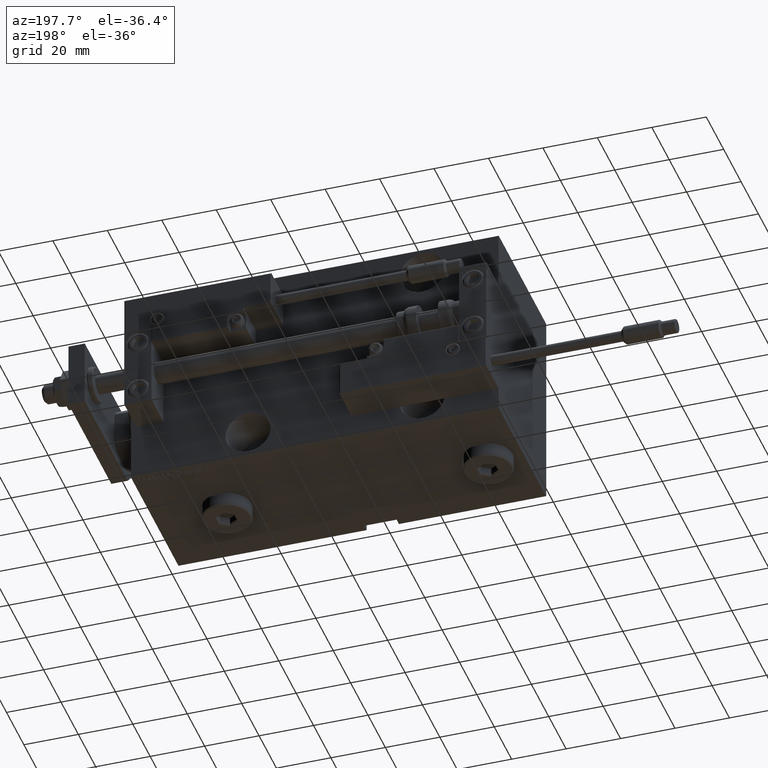
[diagram: clean part render]
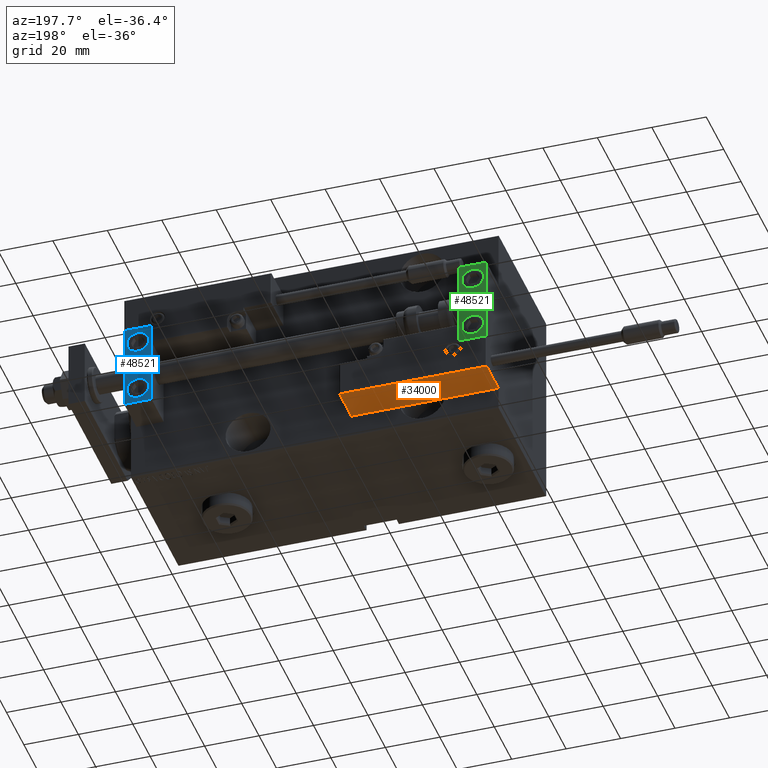
[diagram: same view with three faces highlighted in distinct colors, each labeled with its STEP entity id]
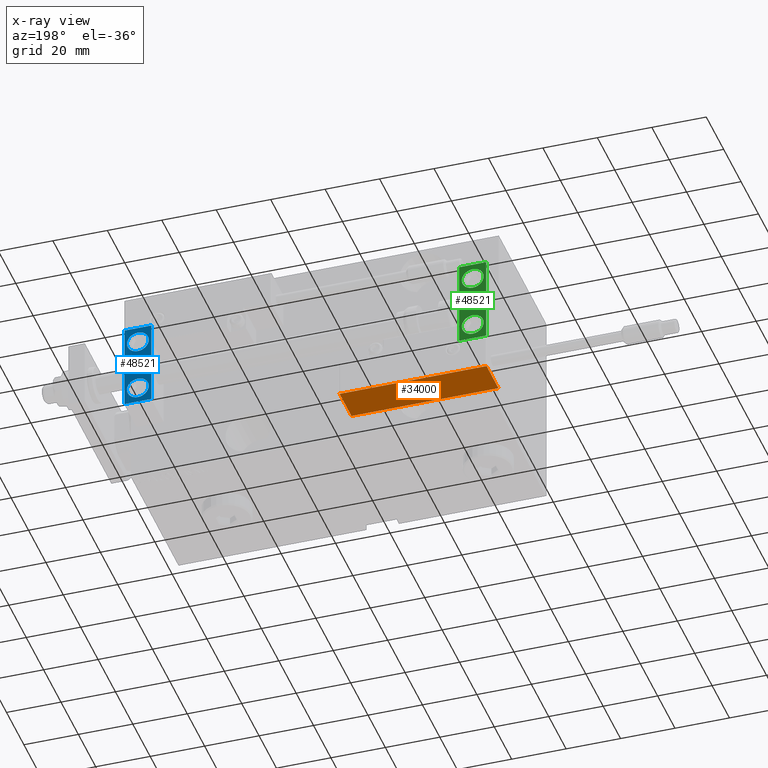
[diagram: x-ray of the same camera — body ghosted, the three highlighted faces saturated]
A machine part, auxiliary view with three faces highlighted in distinct colors.
The next image is the same camera in x-ray (body ghosted, the three faces saturated) — at least one of them is partly hidden behind the body in this view.
Their STEP definitions:

[orange] entity #34000 — the highlighted planar face has unit normal (-0, -0, 1).
#117 = LINE ( 'NONE', #32188, #41498 ) ;
#1582 = EDGE_CURVE ( 'NONE', #38336, #22028, #33457, .T. ) ;
#1802 = DIRECTION ( 'NONE',  ( -0.000000000000000000, -0.000000000000000000, -1.000000000000000000 ) ) ;
#3501 = CARTESIAN_POINT ( 'NONE',  ( 27.00000000000006395, 20.00000000000001776, 0.000000000000000000 ) ) ;
#4026 = DIRECTION ( 'NONE',  ( 1.000000000000000000, -6.424901762877063495E-17, -0.000000000000000000 ) ) ;
#4506 = CARTESIAN_POINT ( 'NONE',  ( 27.00000000000006395, 20.00000000000001776, 14.00000000000000000 ) ) ;
#5030 = DIRECTION ( 'NONE',  ( 1.000000000000000000, -6.424901762877063495E-17, 0.000000000000000000 ) ) ;
#5322 = EDGE_CURVE ( 'NONE', #13831, #38336, #117, .T. ) ;
#6064 = DIRECTION ( 'NONE',  ( -0.000000000000000000, -0.000000000000000000, -1.000000000000000000 ) ) ;
#9102 = ORIENTED_EDGE ( 'NONE', *, *, #1582, .T. ) ;
#10927 = AXIS2_PLACEMENT_3D ( 'NONE', #4506, #36069, #5030 ) ;
#11108 = ORIENTED_EDGE ( 'NONE', *, *, #28473, .F. ) ;
#11586 = DIRECTION ( 'NONE',  ( -1.000000000000000000, 6.424901762877062263E-17, 0.000000000000000000 ) ) ;
#13831 = VERTEX_POINT ( 'NONE', #33783 ) ;
#18570 = VECTOR ( 'NONE', #11586, 1000.000000000000000 ) ;
#18910 = EDGE_CURVE ( 'NONE', #22028, #23529, #39231, .T. ) ;
#22028 = VERTEX_POINT ( 'NONE', #32745 ) ;
#23529 = VERTEX_POINT ( 'NONE', #41276 ) ;
#24361 = PLANE ( 'NONE',  #10927 ) ;
#24663 = ORIENTED_EDGE ( 'NONE', *, *, #18910, .T. ) ;
#28473 = EDGE_CURVE ( 'NONE', #13831, #23529, #37524, .T. ) ;
#29690 = VECTOR ( 'NONE', #6064, 1000.000000000000000 ) ;
#31409 = VECTOR ( 'NONE', #1802, 1000.000000000000000 ) ;
#32188 = CARTESIAN_POINT ( 'NONE',  ( 27.00000000000006395, 20.00000000000001776, 13.70000000000000107 ) ) ;
#32745 = CARTESIAN_POINT ( 'NONE',  ( 27.00000000000006395, 20.00000000000001776, 0.000000000000000000 ) ) ;
#32855 = CARTESIAN_POINT ( 'NONE',  ( -26.99999999999993605, 20.00000000000002132, 14.00000000000000000 ) ) ;
#32938 = FACE_OUTER_BOUND ( 'NONE', #43225, .T. ) ;
#33457 = LINE ( 'NONE', #41794, #29690 ) ;
#33783 = CARTESIAN_POINT ( 'NONE',  ( -26.99999999999993605, 20.00000000000002132, 13.70000000000000107 ) ) ;
#34000 = ADVANCED_FACE ( 'NONE', ( #32938 ), #24361, .F. ) ;
#36069 = DIRECTION ( 'NONE',  ( -6.424901762877063495E-17, -1.000000000000000000, 0.000000000000000000 ) ) ;
#37524 = LINE ( 'NONE', #32855, #31409 ) ;
#38336 = VERTEX_POINT ( 'NONE', #41570 ) ;
#39231 = LINE ( 'NONE', #3501, #18570 ) ;
#41276 = CARTESIAN_POINT ( 'NONE',  ( -26.99999999999993605, 20.00000000000002132, 0.000000000000000000 ) ) ;
#41498 = VECTOR ( 'NONE', #4026, 1000.000000000000000 ) ;
#41570 = CARTESIAN_POINT ( 'NONE',  ( 27.00000000000006395, 20.00000000000001776, 13.70000000000000107 ) ) ;
#41794 = CARTESIAN_POINT ( 'NONE',  ( 27.00000000000006395, 20.00000000000001776, 14.00000000000000000 ) ) ;
#43225 = EDGE_LOOP ( 'NONE', ( #11108, #49711, #9102, #24663 ) ) ;
#49711 = ORIENTED_EDGE ( 'NONE', *, *, #5322, .T. ) ;

[blue] entity #48521 — the highlighted planar face has unit normal (0, 1, 0).
#32 = EDGE_CURVE ( 'NONE', #3631, #19704, #45625, .T. ) ;
#1163 = EDGE_CURVE ( 'NONE', #28882, #3631, #46644, .T. ) ;
#3631 = VERTEX_POINT ( 'NONE', #44435 ) ;
#7130 = AXIS2_PLACEMENT_3D ( 'NONE', #43550, #12544, #24034 ) ;
#7280 = CIRCLE ( 'NONE', #33093, 4.000000000000000888 ) ;
#9534 = VERTEX_POINT ( 'NONE', #37623 ) ;
#10679 = EDGE_CURVE ( 'NONE', #17438, #19704, #12943, .T. ) ;
#10752 = CIRCLE ( 'NONE', #29071, 4.000000000000000888 ) ;
#12017 = PLANE ( 'NONE',  #7130 ) ;
#12072 = LINE ( 'NONE', #35277, #16145 ) ;
#12210 = VECTOR ( 'NONE', #46121, 1000.000000000000000 ) ;
#12266 = CARTESIAN_POINT ( 'NONE',  ( 5.000000000000000888, 6.999999999999999112, -10.00000000000000178 ) ) ;
#12544 = DIRECTION ( 'NONE',  ( -0.000000000000000000, 1.000000000000000000, 0.000000000000000000 ) ) ;
#12943 = LINE ( 'NONE', #44726, #23289 ) ;
#13038 = DIRECTION ( 'NONE',  ( 0.000000000000000000, 0.000000000000000000, 1.000000000000000000 ) ) ;
#13708 = ORIENTED_EDGE ( 'NONE', *, *, #28370, .F. ) ;
#13794 = DIRECTION ( 'NONE',  ( 0.000000000000000000, 0.000000000000000000, 1.000000000000000000 ) ) ;
#13802 = VECTOR ( 'NONE', #26100, 1000.000000000000000 ) ;
#14095 = CARTESIAN_POINT ( 'NONE',  ( 10.00000000000000000, 7.000000000000000000, 15.99999999999999289 ) ) ;
#14229 = EDGE_LOOP ( 'NONE', ( #45964, #33982, #38918, #37557 ) ) ;
#14367 = AXIS2_PLACEMENT_3D ( 'NONE', #47425, #31547, #39376 ) ;
#15009 = ORIENTED_EDGE ( 'NONE', *, *, #25872, .T. ) ;
#16145 = VECTOR ( 'NONE', #24087, 1000.000000000000000 ) ;
#17393 = EDGE_CURVE ( 'NONE', #48704, #9534, #44305, .T. ) ;
#17438 = VERTEX_POINT ( 'NONE', #48197 ) ;
#18689 = CARTESIAN_POINT ( 'NONE',  ( 10.00000000000000000, 7.000000000000000000, 15.99999999999999289 ) ) ;
#18943 = CARTESIAN_POINT ( 'NONE',  ( 5.000000000000000888, 6.999999999999999112, -6.000000000000000888 ) ) ;
#19704 = VERTEX_POINT ( 'NONE', #36931 ) ;
#22538 = VERTEX_POINT ( 'NONE', #37608 ) ;
#23289 = VECTOR ( 'NONE', #24945, 1000.000000000000000 ) ;
#23524 = FACE_BOUND ( 'NONE', #50985, .T. ) ;
#24034 = DIRECTION ( 'NONE',  ( 0.000000000000000000, -0.000000000000000000, 1.000000000000000000 ) ) ;
#24087 = DIRECTION ( 'NONE',  ( -1.000000000000000000, -0.000000000000000000, -0.000000000000000000 ) ) ;
#24945 = DIRECTION ( 'NONE',  ( 0.000000000000000000, 0.000000000000000000, -1.000000000000000000 ) ) ;
#25762 = EDGE_CURVE ( 'NONE', #22538, #28975, #10752, .T. ) ;
#25872 = EDGE_CURVE ( 'NONE', #9534, #48704, #38227, .T. ) ;
#26100 = DIRECTION ( 'NONE',  ( -1.000000000000000000, -0.000000000000000000, -0.000000000000000000 ) ) ;
#28158 = DIRECTION ( 'NONE',  ( 0.000000000000000000, 0.000000000000000000, 1.000000000000000000 ) ) ;
#28370 = EDGE_CURVE ( 'NONE', #28975, #22538, #7280, .T. ) ;
#28882 = VERTEX_POINT ( 'NONE', #18689 ) ;
#28975 = VERTEX_POINT ( 'NONE', #18943 ) ;
#29071 = AXIS2_PLACEMENT_3D ( 'NONE', #48975, #37019, #13038 ) ;
#29709 = CARTESIAN_POINT ( 'NONE',  ( 5.000000000000001776, 7.000000000000000888, 6.000000000000000888 ) ) ;
#31547 = DIRECTION ( 'NONE',  ( 1.848892746611746419E-32, -1.000000000000000000, 6.616381192988677562E-17 ) ) ;
#31832 = FACE_OUTER_BOUND ( 'NONE', #14229, .T. ) ;
#33093 = AXIS2_PLACEMENT_3D ( 'NONE', #12266, #44312, #28158 ) ;
#33199 = ORIENTED_EDGE ( 'NONE', *, *, #25762, .F. ) ;
#33982 = ORIENTED_EDGE ( 'NONE', *, *, #43493, .F. ) ;
#34157 = EDGE_LOOP ( 'NONE', ( #15009, #35574 ) ) ;
#35277 = CARTESIAN_POINT ( 'NONE',  ( 10.00000000000000000, 7.000000000000000000, 15.99999999999999289 ) ) ;
#35574 = ORIENTED_EDGE ( 'NONE', *, *, #17393, .T. ) ;
#36931 = CARTESIAN_POINT ( 'NONE',  ( 0.000000000000000000, 7.000000000000000000, -16.00000000000000711 ) ) ;
#37019 = DIRECTION ( 'NONE',  ( 0.000000000000000000, 1.000000000000000000, -6.065466699219605527E-17 ) ) ;
#37557 = ORIENTED_EDGE ( 'NONE', *, *, #32, .T. ) ;
#37608 = CARTESIAN_POINT ( 'NONE',  ( 5.000000000000001776, 6.999999999999999112, -14.00000000000000178 ) ) ;
#37623 = CARTESIAN_POINT ( 'NONE',  ( 5.000000000000000888, 7.000000000000000888, 14.00000000000000178 ) ) ;
#38227 = CIRCLE ( 'NONE', #40762, 4.000000000000000000 ) ;
#38918 = ORIENTED_EDGE ( 'NONE', *, *, #1163, .T. ) ;
#39376 = DIRECTION ( 'NONE',  ( 0.000000000000000000, 0.000000000000000000, 1.000000000000000000 ) ) ;
#40762 = AXIS2_PLACEMENT_3D ( 'NONE', #45580, #50250, #13794 ) ;
#41988 = CARTESIAN_POINT ( 'NONE',  ( 10.00000000000000000, 7.000000000000000000, -16.00000000000000711 ) ) ;
#43493 = EDGE_CURVE ( 'NONE', #28882, #17438, #12072, .T. ) ;
#43550 = CARTESIAN_POINT ( 'NONE',  ( 10.00000000000000000, 7.000000000000000000, 15.99999999999999289 ) ) ;
#44305 = CIRCLE ( 'NONE', #14367, 4.000000000000000000 ) ;
#44312 = DIRECTION ( 'NONE',  ( 0.000000000000000000, 1.000000000000000000, -6.065466699219605527E-17 ) ) ;
#44435 = CARTESIAN_POINT ( 'NONE',  ( 10.00000000000000000, 7.000000000000000000, -16.00000000000000711 ) ) ;
#44726 = CARTESIAN_POINT ( 'NONE',  ( 0.000000000000000000, 7.000000000000000000, 15.99999999999999289 ) ) ;
#45580 = CARTESIAN_POINT ( 'NONE',  ( 5.000000000000000888, 7.000000000000000888, 10.00000000000000178 ) ) ;
#45625 = LINE ( 'NONE', #41988, #13802 ) ;
#45964 = ORIENTED_EDGE ( 'NONE', *, *, #10679, .F. ) ;
#46121 = DIRECTION ( 'NONE',  ( 0.000000000000000000, 0.000000000000000000, -1.000000000000000000 ) ) ;
#46644 = LINE ( 'NONE', #14095, #12210 ) ;
#47425 = CARTESIAN_POINT ( 'NONE',  ( 5.000000000000000888, 7.000000000000000888, 10.00000000000000178 ) ) ;
#47456 = FACE_BOUND ( 'NONE', #34157, .T. ) ;
#48197 = CARTESIAN_POINT ( 'NONE',  ( 0.000000000000000000, 7.000000000000000000, 15.99999999999999289 ) ) ;
#48521 = ADVANCED_FACE ( 'NONE', ( #31832, #23524, #47456 ), #12017, .T. ) ;
#48704 = VERTEX_POINT ( 'NONE', #29709 ) ;
#48975 = CARTESIAN_POINT ( 'NONE',  ( 5.000000000000000888, 6.999999999999999112, -10.00000000000000178 ) ) ;
#50250 = DIRECTION ( 'NONE',  ( 1.848892746611746419E-32, -1.000000000000000000, 6.616381192988677562E-17 ) ) ;
#50985 = EDGE_LOOP ( 'NONE', ( #13708, #33199 ) ) ;

[green] entity #48521 — the highlighted planar face has unit normal (-0, 1, -0).
#32 = EDGE_CURVE ( 'NONE', #3631, #19704, #45625, .T. ) ;
#1163 = EDGE_CURVE ( 'NONE', #28882, #3631, #46644, .T. ) ;
#3631 = VERTEX_POINT ( 'NONE', #44435 ) ;
#7130 = AXIS2_PLACEMENT_3D ( 'NONE', #43550, #12544, #24034 ) ;
#7280 = CIRCLE ( 'NONE', #33093, 4.000000000000000888 ) ;
#9534 = VERTEX_POINT ( 'NONE', #37623 ) ;
#10679 = EDGE_CURVE ( 'NONE', #17438, #19704, #12943, .T. ) ;
#10752 = CIRCLE ( 'NONE', #29071, 4.000000000000000888 ) ;
#12017 = PLANE ( 'NONE',  #7130 ) ;
#12072 = LINE ( 'NONE', #35277, #16145 ) ;
#12210 = VECTOR ( 'NONE', #46121, 1000.000000000000000 ) ;
#12266 = CARTESIAN_POINT ( 'NONE',  ( 5.000000000000000888, 6.999999999999999112, -10.00000000000000178 ) ) ;
#12544 = DIRECTION ( 'NONE',  ( -0.000000000000000000, 1.000000000000000000, 0.000000000000000000 ) ) ;
#12943 = LINE ( 'NONE', #44726, #23289 ) ;
#13038 = DIRECTION ( 'NONE',  ( 0.000000000000000000, 0.000000000000000000, 1.000000000000000000 ) ) ;
#13708 = ORIENTED_EDGE ( 'NONE', *, *, #28370, .F. ) ;
#13794 = DIRECTION ( 'NONE',  ( 0.000000000000000000, 0.000000000000000000, 1.000000000000000000 ) ) ;
#13802 = VECTOR ( 'NONE', #26100, 1000.000000000000000 ) ;
#14095 = CARTESIAN_POINT ( 'NONE',  ( 10.00000000000000000, 7.000000000000000000, 15.99999999999999289 ) ) ;
#14229 = EDGE_LOOP ( 'NONE', ( #45964, #33982, #38918, #37557 ) ) ;
#14367 = AXIS2_PLACEMENT_3D ( 'NONE', #47425, #31547, #39376 ) ;
#15009 = ORIENTED_EDGE ( 'NONE', *, *, #25872, .T. ) ;
#16145 = VECTOR ( 'NONE', #24087, 1000.000000000000000 ) ;
#17393 = EDGE_CURVE ( 'NONE', #48704, #9534, #44305, .T. ) ;
#17438 = VERTEX_POINT ( 'NONE', #48197 ) ;
#18689 = CARTESIAN_POINT ( 'NONE',  ( 10.00000000000000000, 7.000000000000000000, 15.99999999999999289 ) ) ;
#18943 = CARTESIAN_POINT ( 'NONE',  ( 5.000000000000000888, 6.999999999999999112, -6.000000000000000888 ) ) ;
#19704 = VERTEX_POINT ( 'NONE', #36931 ) ;
#22538 = VERTEX_POINT ( 'NONE', #37608 ) ;
#23289 = VECTOR ( 'NONE', #24945, 1000.000000000000000 ) ;
#23524 = FACE_BOUND ( 'NONE', #50985, .T. ) ;
#24034 = DIRECTION ( 'NONE',  ( 0.000000000000000000, -0.000000000000000000, 1.000000000000000000 ) ) ;
#24087 = DIRECTION ( 'NONE',  ( -1.000000000000000000, -0.000000000000000000, -0.000000000000000000 ) ) ;
#24945 = DIRECTION ( 'NONE',  ( 0.000000000000000000, 0.000000000000000000, -1.000000000000000000 ) ) ;
#25762 = EDGE_CURVE ( 'NONE', #22538, #28975, #10752, .T. ) ;
#25872 = EDGE_CURVE ( 'NONE', #9534, #48704, #38227, .T. ) ;
#26100 = DIRECTION ( 'NONE',  ( -1.000000000000000000, -0.000000000000000000, -0.000000000000000000 ) ) ;
#28158 = DIRECTION ( 'NONE',  ( 0.000000000000000000, 0.000000000000000000, 1.000000000000000000 ) ) ;
#28370 = EDGE_CURVE ( 'NONE', #28975, #22538, #7280, .T. ) ;
#28882 = VERTEX_POINT ( 'NONE', #18689 ) ;
#28975 = VERTEX_POINT ( 'NONE', #18943 ) ;
#29071 = AXIS2_PLACEMENT_3D ( 'NONE', #48975, #37019, #13038 ) ;
#29709 = CARTESIAN_POINT ( 'NONE',  ( 5.000000000000001776, 7.000000000000000888, 6.000000000000000888 ) ) ;
#31547 = DIRECTION ( 'NONE',  ( 1.848892746611746419E-32, -1.000000000000000000, 6.616381192988677562E-17 ) ) ;
#31832 = FACE_OUTER_BOUND ( 'NONE', #14229, .T. ) ;
#33093 = AXIS2_PLACEMENT_3D ( 'NONE', #12266, #44312, #28158 ) ;
#33199 = ORIENTED_EDGE ( 'NONE', *, *, #25762, .F. ) ;
#33982 = ORIENTED_EDGE ( 'NONE', *, *, #43493, .F. ) ;
#34157 = EDGE_LOOP ( 'NONE', ( #15009, #35574 ) ) ;
#35277 = CARTESIAN_POINT ( 'NONE',  ( 10.00000000000000000, 7.000000000000000000, 15.99999999999999289 ) ) ;
#35574 = ORIENTED_EDGE ( 'NONE', *, *, #17393, .T. ) ;
#36931 = CARTESIAN_POINT ( 'NONE',  ( 0.000000000000000000, 7.000000000000000000, -16.00000000000000711 ) ) ;
#37019 = DIRECTION ( 'NONE',  ( 0.000000000000000000, 1.000000000000000000, -6.065466699219605527E-17 ) ) ;
#37557 = ORIENTED_EDGE ( 'NONE', *, *, #32, .T. ) ;
#37608 = CARTESIAN_POINT ( 'NONE',  ( 5.000000000000001776, 6.999999999999999112, -14.00000000000000178 ) ) ;
#37623 = CARTESIAN_POINT ( 'NONE',  ( 5.000000000000000888, 7.000000000000000888, 14.00000000000000178 ) ) ;
#38227 = CIRCLE ( 'NONE', #40762, 4.000000000000000000 ) ;
#38918 = ORIENTED_EDGE ( 'NONE', *, *, #1163, .T. ) ;
#39376 = DIRECTION ( 'NONE',  ( 0.000000000000000000, 0.000000000000000000, 1.000000000000000000 ) ) ;
#40762 = AXIS2_PLACEMENT_3D ( 'NONE', #45580, #50250, #13794 ) ;
#41988 = CARTESIAN_POINT ( 'NONE',  ( 10.00000000000000000, 7.000000000000000000, -16.00000000000000711 ) ) ;
#43493 = EDGE_CURVE ( 'NONE', #28882, #17438, #12072, .T. ) ;
#43550 = CARTESIAN_POINT ( 'NONE',  ( 10.00000000000000000, 7.000000000000000000, 15.99999999999999289 ) ) ;
#44305 = CIRCLE ( 'NONE', #14367, 4.000000000000000000 ) ;
#44312 = DIRECTION ( 'NONE',  ( 0.000000000000000000, 1.000000000000000000, -6.065466699219605527E-17 ) ) ;
#44435 = CARTESIAN_POINT ( 'NONE',  ( 10.00000000000000000, 7.000000000000000000, -16.00000000000000711 ) ) ;
#44726 = CARTESIAN_POINT ( 'NONE',  ( 0.000000000000000000, 7.000000000000000000, 15.99999999999999289 ) ) ;
#45580 = CARTESIAN_POINT ( 'NONE',  ( 5.000000000000000888, 7.000000000000000888, 10.00000000000000178 ) ) ;
#45625 = LINE ( 'NONE', #41988, #13802 ) ;
#45964 = ORIENTED_EDGE ( 'NONE', *, *, #10679, .F. ) ;
#46121 = DIRECTION ( 'NONE',  ( 0.000000000000000000, 0.000000000000000000, -1.000000000000000000 ) ) ;
#46644 = LINE ( 'NONE', #14095, #12210 ) ;
#47425 = CARTESIAN_POINT ( 'NONE',  ( 5.000000000000000888, 7.000000000000000888, 10.00000000000000178 ) ) ;
#47456 = FACE_BOUND ( 'NONE', #34157, .T. ) ;
#48197 = CARTESIAN_POINT ( 'NONE',  ( 0.000000000000000000, 7.000000000000000000, 15.99999999999999289 ) ) ;
#48521 = ADVANCED_FACE ( 'NONE', ( #31832, #23524, #47456 ), #12017, .T. ) ;
#48704 = VERTEX_POINT ( 'NONE', #29709 ) ;
#48975 = CARTESIAN_POINT ( 'NONE',  ( 5.000000000000000888, 6.999999999999999112, -10.00000000000000178 ) ) ;
#50250 = DIRECTION ( 'NONE',  ( 1.848892746611746419E-32, -1.000000000000000000, 6.616381192988677562E-17 ) ) ;
#50985 = EDGE_LOOP ( 'NONE', ( #13708, #33199 ) ) ;